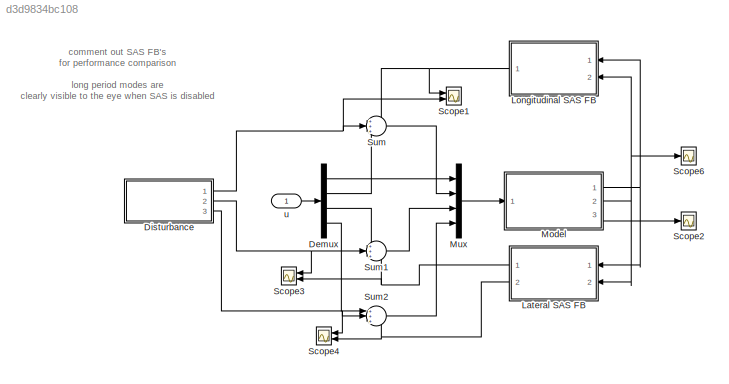
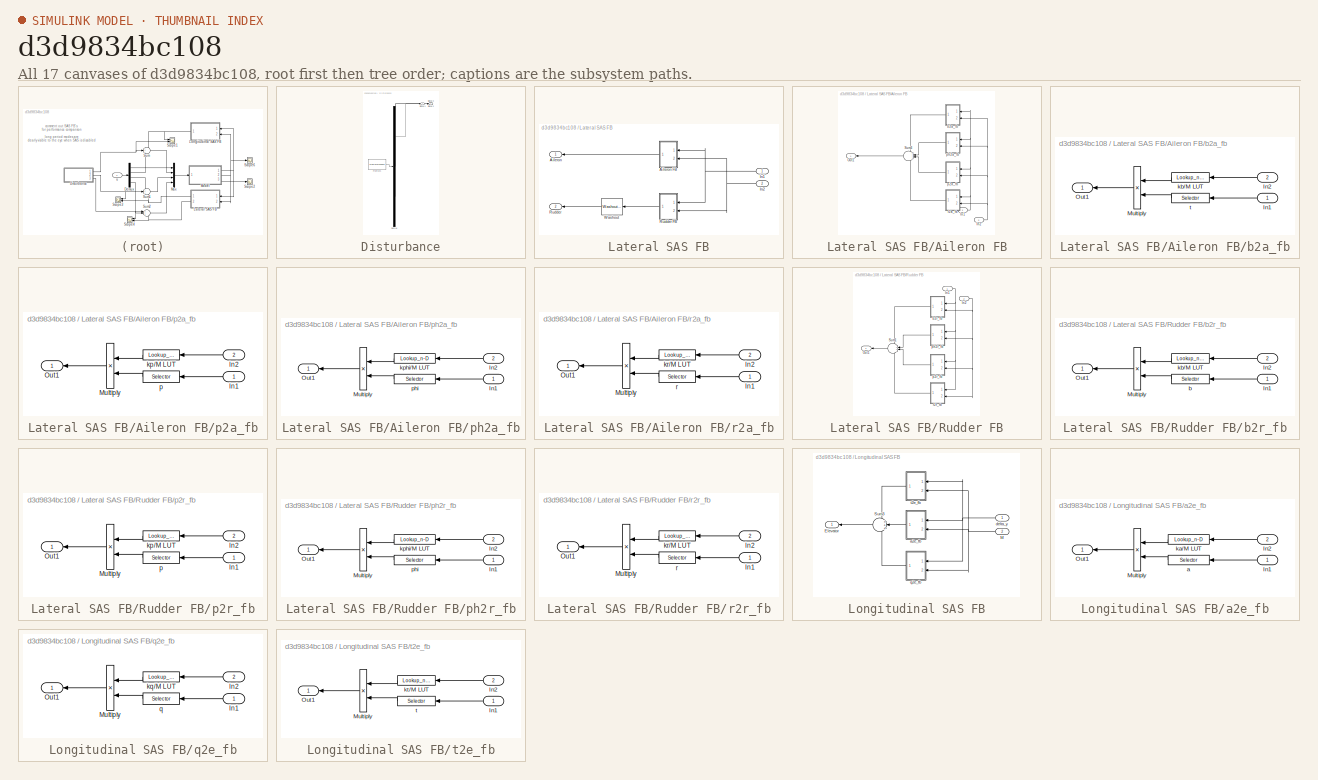
[diagram: thumbnail index - all 17 canvases of the model, root first then tree order]
MODEL slx_d3d9834bc108
KIND model
CONFIG AbsTol = auto
CONFIG EnableMultiTasking = off
CONFIG FixedStep = auto
CONFIG MaxStep = auto
CONFIG MinStep = auto
CONFIG RelTol = 1e-3
CONFIG SampleTimeConstraint = Unconstrained
CONFIG Solver = VariableStepAuto
CONFIG SolverName = VariableStepAuto
CONFIG StartTime = 0.0
CONFIG StopTime = S.simtime
BLOCK [Demux] Demux
  DisplayOption = bar
  Ports = [1, 4]
BLOCK [SubSystem] Disturbance
  ClipboardFcn = sigbuilder_block('clipboard');
  CloseFcn = sigbuilder_block('close');
  ContinueFcn = sigbuilder_block('continue');
  CopyFcn = sigbuilder_block('copy');
  DeleteFcn = sigbuilder_block('delete');
  LoadFcn = sigbuilder_block('load');
  MaskHideContents = on
  ModelCloseFcn = sigbuilder_block('modelClose');
  NameChangeFcn = sigbuilder_block('namechange');
  OpenFcn = sigbuilder_block('open',[6 30 1428 681.75 ]);
  PauseFcn = sigbuilder_block('pause');
  Ports = [0, 3]
  PreSaveFcn = sigbuilder_block('preSave');
  RequestExecContextInheritance = off
  StartFcn = sigbuilder_block('start');
  StopFcn = sigbuilder_block('stop');
  Tag = STV Subsys
BLOCK [Demux] Disturbance/Demux
  Outputs = 3
  Ports = [1, 3]
  Tag = STV Demux
BLOCK [FromWorkspace] Disturbance/FromWs
  SampleTime = 0
  Tag = STV FromWs
  VariableName = tuvar
  ZeroCross = on
BLOCK [Outport] Disturbance/Signal 1
  IconDisplay = Port number
  Tag = STV Outport
BLOCK [Outport] Disturbance/Signal 2
  IconDisplay = Port number
  Port = 2
  Tag = STV Outport
BLOCK [Outport] Disturbance/Signal 3
  IconDisplay = Port number
  Port = 3
  Tag = STV Outport
BLOCK [SubSystem] Lateral SAS FB
  Ports = [2, 2]
  RequestExecContextInheritance = off
BLOCK [Outport] Lateral SAS FB/Aileron
  IconDisplay = Port number
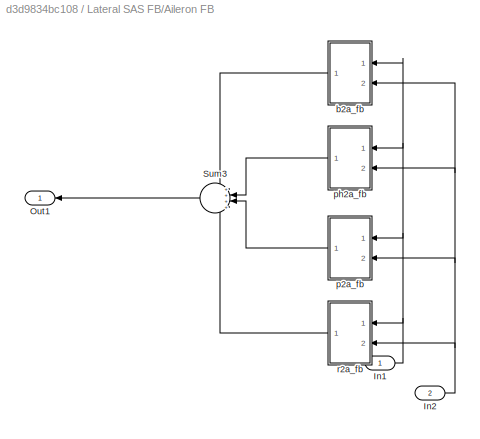
BLOCK [SubSystem] Lateral SAS FB/Aileron FB
  Ports = [2, 1]
  RequestExecContextInheritance = off
BLOCK [Inport] Lateral SAS FB/Aileron FB/In1
  IconDisplay = Port number
BLOCK [Inport] Lateral SAS FB/Aileron FB/In2
  IconDisplay = Port number
  Port = 2
BLOCK [Outport] Lateral SAS FB/Aileron FB/Out1
  IconDisplay = Port number
BLOCK [Sum] Lateral SAS FB/Aileron FB/Sum3
  IconShape = round
  InputSameDT = off
  Inputs = ++++
  OutDataTypeStr = Inherit: Inherit via internal rule
  Ports = [4, 1]
  SaturateOnIntegerOverflow = off
BLOCK [SubSystem] Lateral SAS FB/Aileron FB/b2a_fb
  Ports = [2, 1]
  RequestExecContextInheritance = off
BLOCK [Inport] Lateral SAS FB/Aileron FB/b2a_fb/In1
  IconDisplay = Port number
BLOCK [Inport] Lateral SAS FB/Aileron FB/b2a_fb/In2
  IconDisplay = Port number
  Port = 2
BLOCK [Product] Lateral SAS FB/Aileron FB/b2a_fb/Multiply
  InputSameDT = off
  OutDataTypeStr = Inherit: Inherit via internal rule
  Ports = [2, 1]
  RndMeth = Floor
  SaturateOnIntegerOverflow = off
BLOCK [Outport] Lateral SAS FB/Aileron FB/b2a_fb/Out1
  IconDisplay = Port number
BLOCK [Lookup_n-D] Lateral SAS FB/Aileron FB/b2a_fb/kb//M LUT
  BreakpointsForDimension1 = S.M'
  InternalRulePriority = Speed
  NumberOfTableDimensions = 1
  Ports = [1, 1]
  RndMeth = Simplest
  Table = S.kbLUT
BLOCK [Selector] Lateral SAS FB/Aileron FB/b2a_fb/t
  IndexOptions = Index vector (dialog)
  Indices = [3]
  InputPortWidth = 12
  OutputSizes = 1
  Ports = [1, 1]
BLOCK [SubSystem] Lateral SAS FB/Aileron FB/p2a_fb
  Ports = [2, 1]
  RequestExecContextInheritance = off
BLOCK [Inport] Lateral SAS FB/Aileron FB/p2a_fb/In1
  IconDisplay = Port number
BLOCK [Inport] Lateral SAS FB/Aileron FB/p2a_fb/In2
  IconDisplay = Port number
  Port = 2
BLOCK [Product] Lateral SAS FB/Aileron FB/p2a_fb/Multiply
  InputSameDT = off
  OutDataTypeStr = Inherit: Inherit via internal rule
  Ports = [2, 1]
  RndMeth = Floor
  SaturateOnIntegerOverflow = off
BLOCK [Outport] Lateral SAS FB/Aileron FB/p2a_fb/Out1
  IconDisplay = Port number
BLOCK [Lookup_n-D] Lateral SAS FB/Aileron FB/p2a_fb/kp//M LUT
  BreakpointsForDimension1 = S.M'
  InternalRulePriority = Speed
  NumberOfTableDimensions = 1
  Ports = [1, 1]
  RndMeth = Simplest
  Table = S.kpLUT
BLOCK [Selector] Lateral SAS FB/Aileron FB/p2a_fb/p
  IndexOptions = Index vector (dialog)
  Indices = [7]
  InputPortWidth = 12
  OutputSizes = 1
  Ports = [1, 1]
BLOCK [SubSystem] Lateral SAS FB/Aileron FB/ph2a_fb
  Ports = [2, 1]
  RequestExecContextInheritance = off
BLOCK [Inport] Lateral SAS FB/Aileron FB/ph2a_fb/In1
  IconDisplay = Port number
BLOCK [Inport] Lateral SAS FB/Aileron FB/ph2a_fb/In2
  IconDisplay = Port number
  Port = 2
BLOCK [Product] Lateral SAS FB/Aileron FB/ph2a_fb/Multiply
  InputSameDT = off
  OutDataTypeStr = Inherit: Inherit via internal rule
  Ports = [2, 1]
  RndMeth = Floor
  SaturateOnIntegerOverflow = off
BLOCK [Outport] Lateral SAS FB/Aileron FB/ph2a_fb/Out1
  IconDisplay = Port number
BLOCK [Lookup_n-D] Lateral SAS FB/Aileron FB/ph2a_fb/kphi//M LUT
  BreakpointsForDimension1 = S.M'
  InternalRulePriority = Speed
  NumberOfTableDimensions = 1
  Ports = [1, 1]
  RndMeth = Simplest
  Table = S.kphLUT
BLOCK [Selector] Lateral SAS FB/Aileron FB/ph2a_fb/phi
  IndexOptions = Index vector (dialog)
  Indices = [4]
  InputPortWidth = 12
  OutputSizes = 1
  Ports = [1, 1]
BLOCK [SubSystem] Lateral SAS FB/Aileron FB/r2a_fb
  Ports = [2, 1]
  RequestExecContextInheritance = off
BLOCK [Inport] Lateral SAS FB/Aileron FB/r2a_fb/In1
  IconDisplay = Port number
BLOCK [Inport] Lateral SAS FB/Aileron FB/r2a_fb/In2
  IconDisplay = Port number
  Port = 2
BLOCK [Product] Lateral SAS FB/Aileron FB/r2a_fb/Multiply
  InputSameDT = off
  OutDataTypeStr = Inherit: Inherit via internal rule
  Ports = [2, 1]
  RndMeth = Floor
  SaturateOnIntegerOverflow = off
BLOCK [Outport] Lateral SAS FB/Aileron FB/r2a_fb/Out1
  IconDisplay = Port number
BLOCK [Lookup_n-D] Lateral SAS FB/Aileron FB/r2a_fb/kr//M LUT
  BreakpointsForDimension1 = S.M'
  InternalRulePriority = Speed
  NumberOfTableDimensions = 1
  Ports = [1, 1]
  RndMeth = Simplest
  Table = S.krLUT
BLOCK [Selector] Lateral SAS FB/Aileron FB/r2a_fb/r
  IndexOptions = Index vector (dialog)
  Indices = [9]
  InputPortWidth = 12
  OutputSizes = 1
  Ports = [1, 1]
BLOCK [Inport] Lateral SAS FB/In1
  IconDisplay = Port number
BLOCK [Inport] Lateral SAS FB/In2
  IconDisplay = Port number
  Port = 2
BLOCK [Outport] Lateral SAS FB/Rudder
  IconDisplay = Port number
  Port = 2
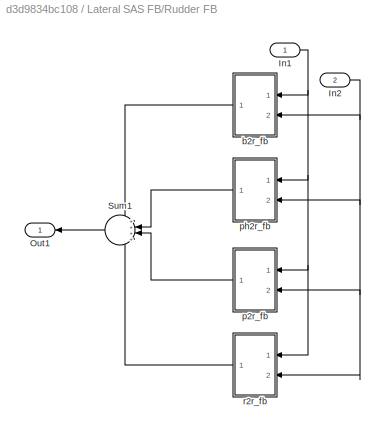
BLOCK [SubSystem] Lateral SAS FB/Rudder FB
  Ports = [2, 1]
  RequestExecContextInheritance = off
BLOCK [Inport] Lateral SAS FB/Rudder FB/In1
  IconDisplay = Port number
BLOCK [Inport] Lateral SAS FB/Rudder FB/In2
  IconDisplay = Port number
  Port = 2
BLOCK [Outport] Lateral SAS FB/Rudder FB/Out1
  IconDisplay = Port number
BLOCK [Sum] Lateral SAS FB/Rudder FB/Sum1
  IconShape = round
  InputSameDT = off
  Inputs = ++++
  OutDataTypeStr = Inherit: Inherit via internal rule
  Ports = [4, 1]
  SaturateOnIntegerOverflow = off
BLOCK [SubSystem] Lateral SAS FB/Rudder FB/b2r_fb
  Ports = [2, 1]
  RequestExecContextInheritance = off
BLOCK [Inport] Lateral SAS FB/Rudder FB/b2r_fb/In1
  IconDisplay = Port number
BLOCK [Inport] Lateral SAS FB/Rudder FB/b2r_fb/In2
  IconDisplay = Port number
  Port = 2
BLOCK [Product] Lateral SAS FB/Rudder FB/b2r_fb/Multiply
  InputSameDT = off
  OutDataTypeStr = Inherit: Inherit via internal rule
  Ports = [2, 1]
  RndMeth = Floor
  SaturateOnIntegerOverflow = off
BLOCK [Outport] Lateral SAS FB/Rudder FB/b2r_fb/Out1
  IconDisplay = Port number
BLOCK [Selector] Lateral SAS FB/Rudder FB/b2r_fb/b
  IndexOptions = Index vector (dialog)
  Indices = [3]
  InputPortWidth = 12
  OutputSizes = 1
  Ports = [1, 1]
BLOCK [Lookup_n-D] Lateral SAS FB/Rudder FB/b2r_fb/kb//M LUT
  BreakpointsForDimension1 = S.M'
  InternalRulePriority = Speed
  NumberOfTableDimensions = 1
  Ports = [1, 1]
  RndMeth = Simplest
  Table = S.kbLUT2
BLOCK [SubSystem] Lateral SAS FB/Rudder FB/p2r_fb
  Ports = [2, 1]
  RequestExecContextInheritance = off
BLOCK [Inport] Lateral SAS FB/Rudder FB/p2r_fb/In1
  IconDisplay = Port number
BLOCK [Inport] Lateral SAS FB/Rudder FB/p2r_fb/In2
  IconDisplay = Port number
  Port = 2
BLOCK [Product] Lateral SAS FB/Rudder FB/p2r_fb/Multiply
  InputSameDT = off
  OutDataTypeStr = Inherit: Inherit via internal rule
  Ports = [2, 1]
  RndMeth = Floor
  SaturateOnIntegerOverflow = off
BLOCK [Outport] Lateral SAS FB/Rudder FB/p2r_fb/Out1
  IconDisplay = Port number
BLOCK [Lookup_n-D] Lateral SAS FB/Rudder FB/p2r_fb/kp//M LUT
  BreakpointsForDimension1 = S.M'
  InternalRulePriority = Speed
  NumberOfTableDimensions = 1
  Ports = [1, 1]
  RndMeth = Simplest
  Table = S.kpLUT2
BLOCK [Selector] Lateral SAS FB/Rudder FB/p2r_fb/p
  IndexOptions = Index vector (dialog)
  Indices = [7]
  InputPortWidth = 12
  OutputSizes = 1
  Ports = [1, 1]
BLOCK [SubSystem] Lateral SAS FB/Rudder FB/ph2r_fb
  Ports = [2, 1]
  RequestExecContextInheritance = off
BLOCK [Inport] Lateral SAS FB/Rudder FB/ph2r_fb/In1
  IconDisplay = Port number
BLOCK [Inport] Lateral SAS FB/Rudder FB/ph2r_fb/In2
  IconDisplay = Port number
  Port = 2
BLOCK [Product] Lateral SAS FB/Rudder FB/ph2r_fb/Multiply
  InputSameDT = off
  OutDataTypeStr = Inherit: Inherit via internal rule
  Ports = [2, 1]
  RndMeth = Floor
  SaturateOnIntegerOverflow = off
BLOCK [Outport] Lateral SAS FB/Rudder FB/ph2r_fb/Out1
  IconDisplay = Port number
BLOCK [Lookup_n-D] Lateral SAS FB/Rudder FB/ph2r_fb/kphi//M LUT
  BreakpointsForDimension1 = S.M'
  InternalRulePriority = Speed
  NumberOfTableDimensions = 1
  Ports = [1, 1]
  RndMeth = Simplest
  Table = S.kphLUT2
BLOCK [Selector] Lateral SAS FB/Rudder FB/ph2r_fb/phi
  IndexOptions = Index vector (dialog)
  Indices = [4]
  InputPortWidth = 12
  OutputSizes = 1
  Ports = [1, 1]
BLOCK [SubSystem] Lateral SAS FB/Rudder FB/r2r_fb
  Ports = [2, 1]
  RequestExecContextInheritance = off
BLOCK [Inport] Lateral SAS FB/Rudder FB/r2r_fb/In1
  IconDisplay = Port number
BLOCK [Inport] Lateral SAS FB/Rudder FB/r2r_fb/In2
  IconDisplay = Port number
  Port = 2
BLOCK [Product] Lateral SAS FB/Rudder FB/r2r_fb/Multiply
  InputSameDT = off
  OutDataTypeStr = Inherit: Inherit via internal rule
  Ports = [2, 1]
  RndMeth = Floor
  SaturateOnIntegerOverflow = off
BLOCK [Outport] Lateral SAS FB/Rudder FB/r2r_fb/Out1
  IconDisplay = Port number
BLOCK [Lookup_n-D] Lateral SAS FB/Rudder FB/r2r_fb/kr//M LUT
  BreakpointsForDimension1 = S.M'
  InternalRulePriority = Speed
  NumberOfTableDimensions = 1
  Ports = [1, 1]
  RndMeth = Simplest
  Table = S.krLUT2
BLOCK [Selector] Lateral SAS FB/Rudder FB/r2r_fb/r
  IndexOptions = Index vector (dialog)
  Indices = [9]
  InputPortWidth = 12
  OutputSizes = 1
  Ports = [1, 1]
BLOCK [Reference] Lateral SAS FB/Washout  REF=peGeneralControl/Washout
(Discrete or Continuous)
  Ports = [1, 1]
  SourceBlock = peGeneralControl/Washout\n(Discrete or Continuous)
  SourceType = Washout (Discrete or Continuous)
BLOCK [SubSystem] Longitudinal SAS FB
  Ports = [2, 1]
  RequestExecContextInheritance = off
BLOCK [Outport] Longitudinal SAS FB/Elevator
  IconDisplay = Port number
BLOCK [Inport] Longitudinal SAS FB/M
  IconDisplay = Port number
  Port = 2
BLOCK [Sum] Longitudinal SAS FB/Sum3
  IconShape = round
  InputSameDT = off
  Inputs = +++
  OutDataTypeStr = Inherit: Inherit via internal rule
  Ports = [3, 1]
  SaturateOnIntegerOverflow = off
BLOCK [SubSystem] Longitudinal SAS FB/a2e_fb
  Ports = [2, 1]
  RequestExecContextInheritance = off
BLOCK [Inport] Longitudinal SAS FB/a2e_fb/In1
  IconDisplay = Port number
BLOCK [Inport] Longitudinal SAS FB/a2e_fb/In2
  IconDisplay = Port number
  Port = 2
BLOCK [Product] Longitudinal SAS FB/a2e_fb/Multiply
  InputSameDT = off
  OutDataTypeStr = Inherit: Inherit via internal rule
  Ports = [2, 1]
  RndMeth = Floor
  SaturateOnIntegerOverflow = off
BLOCK [Outport] Longitudinal SAS FB/a2e_fb/Out1
  IconDisplay = Port number
BLOCK [Selector] Longitudinal SAS FB/a2e_fb/a
  IndexOptions = Index vector (dialog)
  Indices = [2]
  InputPortWidth = 12
  OutputSizes = 1
  Ports = [1, 1]
BLOCK [Lookup_n-D] Longitudinal SAS FB/a2e_fb/ka//M LUT
  BreakpointsForDimension1 = S.M'
  InternalRulePriority = Speed
  NumberOfTableDimensions = 1
  Ports = [1, 1]
  RndMeth = Simplest
  Table = S.kaLUT
BLOCK [Inport] Longitudinal SAS FB/delta_y
  IconDisplay = Port number
BLOCK [SubSystem] Longitudinal SAS FB/q2e_fb
  Ports = [2, 1]
  RequestExecContextInheritance = off
BLOCK [Inport] Longitudinal SAS FB/q2e_fb/In1
  IconDisplay = Port number
BLOCK [Inport] Longitudinal SAS FB/q2e_fb/In2
  IconDisplay = Port number
  Port = 2
BLOCK [Product] Longitudinal SAS FB/q2e_fb/Multiply
  InputSameDT = off
  OutDataTypeStr = Inherit: Inherit via internal rule
  Ports = [2, 1]
  RndMeth = Floor
  SaturateOnIntegerOverflow = off
BLOCK [Outport] Longitudinal SAS FB/q2e_fb/Out1
  IconDisplay = Port number
BLOCK [Lookup_n-D] Longitudinal SAS FB/q2e_fb/kq//M LUT
  BreakpointsForDimension1 = S.M'
  InternalRulePriority = Speed
  NumberOfTableDimensions = 1
  Ports = [1, 1]
  RndMeth = Simplest
  Table = S.kqLUT
BLOCK [Selector] Longitudinal SAS FB/q2e_fb/q
  IndexOptions = Index vector (dialog)
  Indices = [8]
  InputPortWidth = 12
  OutputSizes = 1
  Ports = [1, 1]
BLOCK [SubSystem] Longitudinal SAS FB/t2e_fb
  Ports = [2, 1]
  RequestExecContextInheritance = off
BLOCK [Inport] Longitudinal SAS FB/t2e_fb/In1
  IconDisplay = Port number
BLOCK [Inport] Longitudinal SAS FB/t2e_fb/In2
  IconDisplay = Port number
  Port = 2
BLOCK [Product] Longitudinal SAS FB/t2e_fb/Multiply
  InputSameDT = off
  OutDataTypeStr = Inherit: Inherit via internal rule
  Ports = [2, 1]
  RndMeth = Floor
  SaturateOnIntegerOverflow = off
BLOCK [Outport] Longitudinal SAS FB/t2e_fb/Out1
  IconDisplay = Port number
BLOCK [Lookup_n-D] Longitudinal SAS FB/t2e_fb/kt//M LUT
  BreakpointsForDimension1 = S.M'
  InternalRulePriority = Speed
  NumberOfTableDimensions = 1
  Ports = [1, 1]
  RndMeth = Simplest
  Table = S.ktLUT
BLOCK [Selector] Longitudinal SAS FB/t2e_fb/t
  IndexOptions = Index vector (dialog)
  Indices = [5]
  InputPortWidth = 12
  OutputSizes = 1
  Ports = [1, 1]
BLOCK [ModelReference] Model
  ModelNameDialog = B737_PLANT
  ModelReferenceVersion = 1.6
  Ports = [1, 3]
BLOCK [Mux] Mux
  DisplayOption = bar
  Ports = [4, 1]
BLOCK [Scope] Scope1
  Floating = off
  NumInputPorts = 2
  Ports = [2]
  ScopeSpecificationString = Simulink.scopes.TimeScopeBlockCfg('CurrentConfiguration', extmgr.ConfigurationSet(extmgr.Configuration('Core','General UI',true),extmgr.Configuration('Core','Source UI',true),extmgr.Configuration('Sources','WiredSimulink',true,'DataLoggingVariableName','ScopeData1'),extmgr.Configuration('Visuals','Time Domain',true,'SerializedDisplays',{struct('MinYLimReal','-0.15885','MaxYLimReal','0.4297','YLabe...<+1777ch>
BLOCK [Scope] Scope2
  Floating = off
  NumInputPorts = 1
  Ports = [1]
  ScopeSpecificationString = Simulink.scopes.TimeScopeBlockCfg('CurrentConfiguration', extmgr.ConfigurationSet(extmgr.Configuration('Core','General UI',true),extmgr.Configuration('Core','Source UI',true),extmgr.Configuration('Sources','WiredSimulink',true,'DataLoggingVariableName','ScopeData2'),extmgr.Configuration('Visuals','Time Domain',true,'SerializedDisplays',{struct('MinYLimReal','-1.18584','MaxYLimReal','1.73077','YLab...<+1919ch>
BLOCK [Scope] Scope3
  Floating = off
  NumInputPorts = 2
  Ports = [2]
  ScopeSpecificationString = Simulink.scopes.TimeScopeBlockCfg('CurrentConfiguration', extmgr.ConfigurationSet(extmgr.Configuration('Core','General UI',true),extmgr.Configuration('Core','Source UI',true),extmgr.Configuration('Sources','WiredSimulink',true,'DataLoggingVariableName','ScopeData1'),extmgr.Configuration('Visuals','Time Domain',true,'SerializedDisplays',{struct('MinYLimReal','-0.15885','MaxYLimReal','0.4297','YLabe...<+1774ch>
BLOCK [Scope] Scope4
  Floating = off
  NumInputPorts = 2
  Ports = [2]
  ScopeSpecificationString = Simulink.scopes.TimeScopeBlockCfg('CurrentConfiguration', extmgr.ConfigurationSet(extmgr.Configuration('Core','General UI',true),extmgr.Configuration('Core','Source UI',true),extmgr.Configuration('Sources','WiredSimulink',true,'DataLoggingVariableName','ScopeData2'),extmgr.Configuration('Visuals','Time Domain',true,'SerializedDisplays',{struct('MinYLimReal','-0.15885','MaxYLimReal','0.4297','YLabe...<+1774ch>
BLOCK [Scope] Scope6
  Floating = off
  NumInputPorts = 1
  Ports = [1]
  ScopeSpecificationString = Simulink.scopes.TimeScopeBlockCfg('CurrentConfiguration', extmgr.ConfigurationSet(extmgr.Configuration('Core','General UI',true),extmgr.Configuration('Core','Source UI',true),extmgr.Configuration('Sources','WiredSimulink',true,'DataLoggingVariableName','ScopeData1'),extmgr.Configuration('Visuals','Time Domain',true,'SerializedDisplays',{struct('MinYLimReal','0.76143','MaxYLimReal','0.80026','YLabe...<+1443ch>
BLOCK [Sum] Sum
  IconShape = round
  InputSameDT = off
  Inputs = +++
  OutDataTypeStr = Inherit: Inherit via internal rule
  Ports = [3, 1]
  SaturateOnIntegerOverflow = off
BLOCK [Sum] Sum1
  IconShape = round
  InputSameDT = off
  Inputs = +++
  OutDataTypeStr = Inherit: Inherit via internal rule
  Ports = [3, 1]
  SaturateOnIntegerOverflow = off
BLOCK [Sum] Sum2
  IconShape = round
  InputSameDT = off
  Inputs = +++
  OutDataTypeStr = Inherit: Inherit via internal rule
  Ports = [3, 1]
  SaturateOnIntegerOverflow = off
BLOCK [Inport] u
  IconDisplay = Port number
ANNOTATION (root): comment out SAS FB's for performance comparison long period modes are clearly visible to the eye when SAS is disabled
LINE Demux:1 -> Mux:1
LINE Demux:2 -> Sum:3
LINE Demux:3 -> Sum1:1
LINE Demux:4 -> Sum2:1
NET Disturbance:1 -> Scope1:2, Sum:2
NET Disturbance:2 -> Scope3:1, Sum1:2
NET Disturbance:3 -> Scope4:1, Sum2:2
NET Lateral SAS FB/Aileron FB/In1:1 -> Lateral SAS FB/Aileron FB/b2a_fb:1, Lateral SAS FB/Aileron FB/p2a_fb:1, Lateral SAS FB/Aileron FB/ph2a_fb:1, Lateral SAS FB/Aileron FB/r2a_fb:1
NET Lateral SAS FB/Aileron FB/In2:1 -> Lateral SAS FB/Aileron FB/b2a_fb:2, Lateral SAS FB/Aileron FB/p2a_fb:2, Lateral SAS FB/Aileron FB/ph2a_fb:2, Lateral SAS FB/Aileron FB/r2a_fb:2
LINE Lateral SAS FB/Aileron FB/Sum3:1 -> Lateral SAS FB/Aileron FB/Out1:1
LINE Lateral SAS FB/Aileron FB/b2a_fb/In1:1 -> Lateral SAS FB/Aileron FB/b2a_fb/t:1
LINE Lateral SAS FB/Aileron FB/b2a_fb/In2:1 -> Lateral SAS FB/Aileron FB/b2a_fb/kb//M LUT:1
LINE Lateral SAS FB/Aileron FB/b2a_fb/Multiply:1 -> Lateral SAS FB/Aileron FB/b2a_fb/Out1:1
LINE Lateral SAS FB/Aileron FB/b2a_fb/kb//M LUT:1 -> Lateral SAS FB/Aileron FB/b2a_fb/Multiply:1
LINE Lateral SAS FB/Aileron FB/b2a_fb/t:1 -> Lateral SAS FB/Aileron FB/b2a_fb/Multiply:2
LINE Lateral SAS FB/Aileron FB/b2a_fb:1 -> Lateral SAS FB/Aileron FB/Sum3:1
LINE Lateral SAS FB/Aileron FB/p2a_fb/In1:1 -> Lateral SAS FB/Aileron FB/p2a_fb/p:1
LINE Lateral SAS FB/Aileron FB/p2a_fb/In2:1 -> Lateral SAS FB/Aileron FB/p2a_fb/kp//M LUT:1
LINE Lateral SAS FB/Aileron FB/p2a_fb/Multiply:1 -> Lateral SAS FB/Aileron FB/p2a_fb/Out1:1
LINE Lateral SAS FB/Aileron FB/p2a_fb/kp//M LUT:1 -> Lateral SAS FB/Aileron FB/p2a_fb/Multiply:1
LINE Lateral SAS FB/Aileron FB/p2a_fb/p:1 -> Lateral SAS FB/Aileron FB/p2a_fb/Multiply:2
LINE Lateral SAS FB/Aileron FB/p2a_fb:1 -> Lateral SAS FB/Aileron FB/Sum3:3
LINE Lateral SAS FB/Aileron FB/ph2a_fb/In1:1 -> Lateral SAS FB/Aileron FB/ph2a_fb/phi:1
LINE Lateral SAS FB/Aileron FB/ph2a_fb/In2:1 -> Lateral SAS FB/Aileron FB/ph2a_fb/kphi//M LUT:1
LINE Lateral SAS FB/Aileron FB/ph2a_fb/Multiply:1 -> Lateral SAS FB/Aileron FB/ph2a_fb/Out1:1
LINE Lateral SAS FB/Aileron FB/ph2a_fb/kphi//M LUT:1 -> Lateral SAS FB/Aileron FB/ph2a_fb/Multiply:1
LINE Lateral SAS FB/Aileron FB/ph2a_fb/phi:1 -> Lateral SAS FB/Aileron FB/ph2a_fb/Multiply:2
LINE Lateral SAS FB/Aileron FB/ph2a_fb:1 -> Lateral SAS FB/Aileron FB/Sum3:2
LINE Lateral SAS FB/Aileron FB/r2a_fb/In1:1 -> Lateral SAS FB/Aileron FB/r2a_fb/r:1
LINE Lateral SAS FB/Aileron FB/r2a_fb/In2:1 -> Lateral SAS FB/Aileron FB/r2a_fb/kr//M LUT:1
LINE Lateral SAS FB/Aileron FB/r2a_fb/Multiply:1 -> Lateral SAS FB/Aileron FB/r2a_fb/Out1:1
LINE Lateral SAS FB/Aileron FB/r2a_fb/kr//M LUT:1 -> Lateral SAS FB/Aileron FB/r2a_fb/Multiply:1
LINE Lateral SAS FB/Aileron FB/r2a_fb/r:1 -> Lateral SAS FB/Aileron FB/r2a_fb/Multiply:2
LINE Lateral SAS FB/Aileron FB/r2a_fb:1 -> Lateral SAS FB/Aileron FB/Sum3:4
LINE Lateral SAS FB/Aileron FB:1 -> Lateral SAS FB/Aileron:1
NET Lateral SAS FB/In1:1 -> Lateral SAS FB/Aileron FB:1, Lateral SAS FB/Rudder FB:1
NET Lateral SAS FB/In2:1 -> Lateral SAS FB/Aileron FB:2, Lateral SAS FB/Rudder FB:2
NET Lateral SAS FB/Rudder FB/In1:1 -> Lateral SAS FB/Rudder FB/b2r_fb:1, Lateral SAS FB/Rudder FB/p2r_fb:1, Lateral SAS FB/Rudder FB/ph2r_fb:1, Lateral SAS FB/Rudder FB/r2r_fb:1
NET Lateral SAS FB/Rudder FB/In2:1 -> Lateral SAS FB/Rudder FB/b2r_fb:2, Lateral SAS FB/Rudder FB/p2r_fb:2, Lateral SAS FB/Rudder FB/ph2r_fb:2, Lateral SAS FB/Rudder FB/r2r_fb:2
LINE Lateral SAS FB/Rudder FB/Sum1:1 -> Lateral SAS FB/Rudder FB/Out1:1
LINE Lateral SAS FB/Rudder FB/b2r_fb/In1:1 -> Lateral SAS FB/Rudder FB/b2r_fb/b:1
LINE Lateral SAS FB/Rudder FB/b2r_fb/In2:1 -> Lateral SAS FB/Rudder FB/b2r_fb/kb//M LUT:1
LINE Lateral SAS FB/Rudder FB/b2r_fb/Multiply:1 -> Lateral SAS FB/Rudder FB/b2r_fb/Out1:1
LINE Lateral SAS FB/Rudder FB/b2r_fb/b:1 -> Lateral SAS FB/Rudder FB/b2r_fb/Multiply:2
LINE Lateral SAS FB/Rudder FB/b2r_fb/kb//M LUT:1 -> Lateral SAS FB/Rudder FB/b2r_fb/Multiply:1
LINE Lateral SAS FB/Rudder FB/b2r_fb:1 -> Lateral SAS FB/Rudder FB/Sum1:1
LINE Lateral SAS FB/Rudder FB/p2r_fb/In1:1 -> Lateral SAS FB/Rudder FB/p2r_fb/p:1
LINE Lateral SAS FB/Rudder FB/p2r_fb/In2:1 -> Lateral SAS FB/Rudder FB/p2r_fb/kp//M LUT:1
LINE Lateral SAS FB/Rudder FB/p2r_fb/Multiply:1 -> Lateral SAS FB/Rudder FB/p2r_fb/Out1:1
LINE Lateral SAS FB/Rudder FB/p2r_fb/kp//M LUT:1 -> Lateral SAS FB/Rudder FB/p2r_fb/Multiply:1
LINE Lateral SAS FB/Rudder FB/p2r_fb/p:1 -> Lateral SAS FB/Rudder FB/p2r_fb/Multiply:2
LINE Lateral SAS FB/Rudder FB/p2r_fb:1 -> Lateral SAS FB/Rudder FB/Sum1:3
LINE Lateral SAS FB/Rudder FB/ph2r_fb/In1:1 -> Lateral SAS FB/Rudder FB/ph2r_fb/phi:1
LINE Lateral SAS FB/Rudder FB/ph2r_fb/In2:1 -> Lateral SAS FB/Rudder FB/ph2r_fb/kphi//M LUT:1
LINE Lateral SAS FB/Rudder FB/ph2r_fb/Multiply:1 -> Lateral SAS FB/Rudder FB/ph2r_fb/Out1:1
LINE Lateral SAS FB/Rudder FB/ph2r_fb/kphi//M LUT:1 -> Lateral SAS FB/Rudder FB/ph2r_fb/Multiply:1
LINE Lateral SAS FB/Rudder FB/ph2r_fb/phi:1 -> Lateral SAS FB/Rudder FB/ph2r_fb/Multiply:2
LINE Lateral SAS FB/Rudder FB/ph2r_fb:1 -> Lateral SAS FB/Rudder FB/Sum1:2
LINE Lateral SAS FB/Rudder FB/r2r_fb/In1:1 -> Lateral SAS FB/Rudder FB/r2r_fb/r:1
LINE Lateral SAS FB/Rudder FB/r2r_fb/In2:1 -> Lateral SAS FB/Rudder FB/r2r_fb/kr//M LUT:1
LINE Lateral SAS FB/Rudder FB/r2r_fb/Multiply:1 -> Lateral SAS FB/Rudder FB/r2r_fb/Out1:1
LINE Lateral SAS FB/Rudder FB/r2r_fb/kr//M LUT:1 -> Lateral SAS FB/Rudder FB/r2r_fb/Multiply:1
LINE Lateral SAS FB/Rudder FB/r2r_fb/r:1 -> Lateral SAS FB/Rudder FB/r2r_fb/Multiply:2
LINE Lateral SAS FB/Rudder FB/r2r_fb:1 -> Lateral SAS FB/Rudder FB/Sum1:4
LINE Lateral SAS FB/Rudder FB:1 -> Lateral SAS FB/Washout:1
LINE Lateral SAS FB/Washout:1 -> Lateral SAS FB/Rudder:1
NET Lateral SAS FB:1 -> Scope3:2, Sum1:3
NET Lateral SAS FB:2 -> Scope4:2, Sum2:3
NET Longitudinal SAS FB/M:1 -> Longitudinal SAS FB/a2e_fb:2, Longitudinal SAS FB/q2e_fb:2, Longitudinal SAS FB/t2e_fb:2
LINE Longitudinal SAS FB/Sum3:1 -> Longitudinal SAS FB/Elevator:1
LINE Longitudinal SAS FB/a2e_fb/In1:1 -> Longitudinal SAS FB/a2e_fb/a:1
LINE Longitudinal SAS FB/a2e_fb/In2:1 -> Longitudinal SAS FB/a2e_fb/ka//M LUT:1
LINE Longitudinal SAS FB/a2e_fb/Multiply:1 -> Longitudinal SAS FB/a2e_fb/Out1:1
LINE Longitudinal SAS FB/a2e_fb/a:1 -> Longitudinal SAS FB/a2e_fb/Multiply:2
LINE Longitudinal SAS FB/a2e_fb/ka//M LUT:1 -> Longitudinal SAS FB/a2e_fb/Multiply:1
LINE Longitudinal SAS FB/a2e_fb:1 -> Longitudinal SAS FB/Sum3:2
NET Longitudinal SAS FB/delta_y:1 -> Longitudinal SAS FB/a2e_fb:1, Longitudinal SAS FB/q2e_fb:1, Longitudinal SAS FB/t2e_fb:1
LINE Longitudinal SAS FB/q2e_fb/In1:1 -> Longitudinal SAS FB/q2e_fb/q:1
LINE Longitudinal SAS FB/q2e_fb/In2:1 -> Longitudinal SAS FB/q2e_fb/kq//M LUT:1
LINE Longitudinal SAS FB/q2e_fb/Multiply:1 -> Longitudinal SAS FB/q2e_fb/Out1:1
LINE Longitudinal SAS FB/q2e_fb/kq//M LUT:1 -> Longitudinal SAS FB/q2e_fb/Multiply:1
LINE Longitudinal SAS FB/q2e_fb/q:1 -> Longitudinal SAS FB/q2e_fb/Multiply:2
LINE Longitudinal SAS FB/q2e_fb:1 -> Longitudinal SAS FB/Sum3:3
LINE Longitudinal SAS FB/t2e_fb/In1:1 -> Longitudinal SAS FB/t2e_fb/t:1
LINE Longitudinal SAS FB/t2e_fb/In2:1 -> Longitudinal SAS FB/t2e_fb/kt//M LUT:1
LINE Longitudinal SAS FB/t2e_fb/Multiply:1 -> Longitudinal SAS FB/t2e_fb/Out1:1
LINE Longitudinal SAS FB/t2e_fb/kt//M LUT:1 -> Longitudinal SAS FB/t2e_fb/Multiply:1
LINE Longitudinal SAS FB/t2e_fb/t:1 -> Longitudinal SAS FB/t2e_fb/Multiply:2
LINE Longitudinal SAS FB/t2e_fb:1 -> Longitudinal SAS FB/Sum3:1
NET Longitudinal SAS FB:1 -> Scope1:1, Sum:1
NET Model:1 -> Lateral SAS FB:1, Longitudinal SAS FB:1
NET Model:2 -> Lateral SAS FB:2, Longitudinal SAS FB:2, Scope6:1
LINE Model:3 -> Scope2:1
LINE Mux:1 -> Model:1
LINE Sum1:1 -> Mux:3
LINE Sum2:1 -> Mux:4
LINE Sum:1 -> Mux:2
LINE u:1 -> Demux:1
note: NET lines group one-source signal fan-out (src -> all destinations, sorted); 1:1 wires keep LINE
